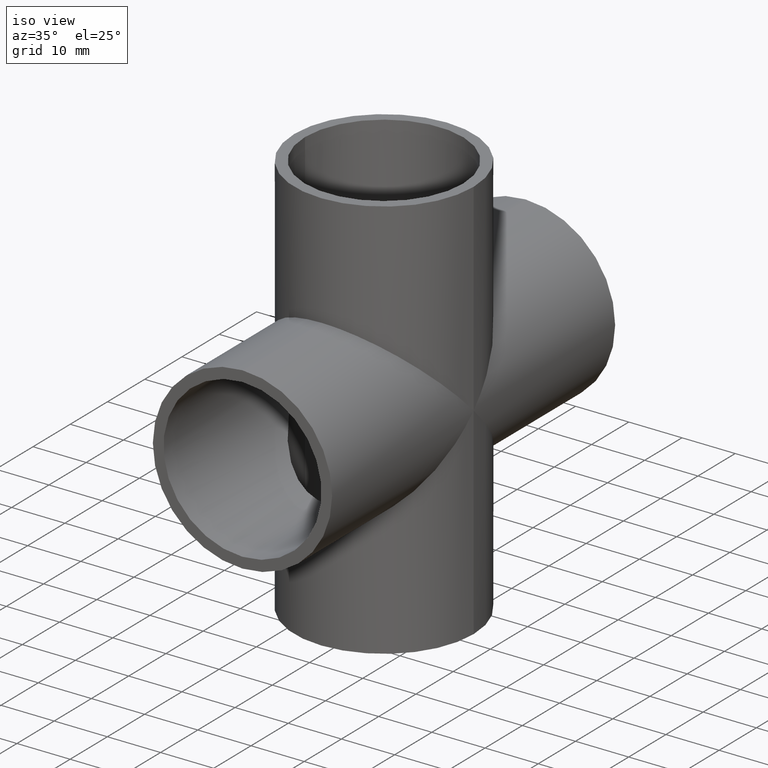
[diagram: clean part render]
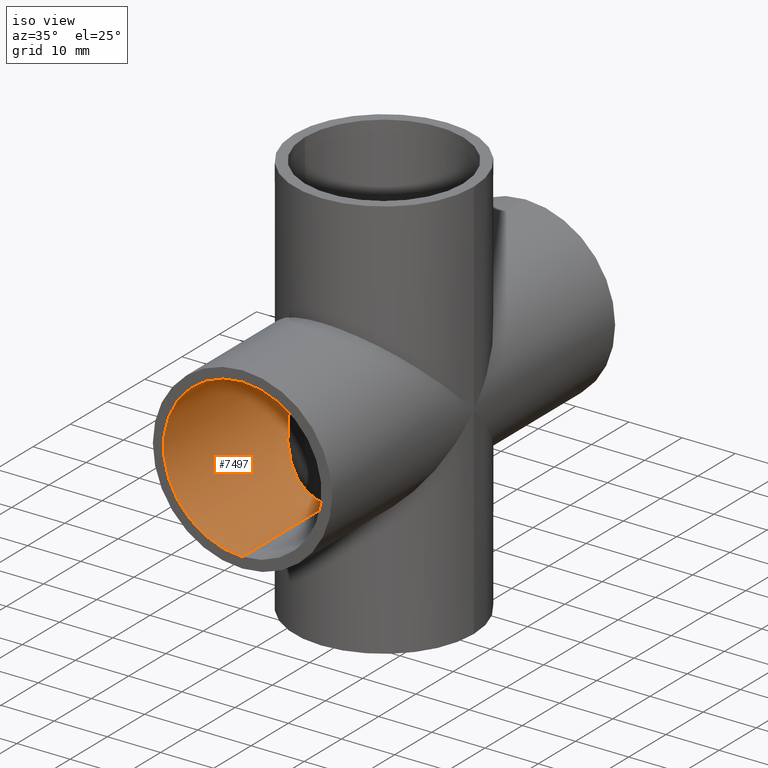
[diagram: same view with one face highlighted and labeled with its STEP entity id]
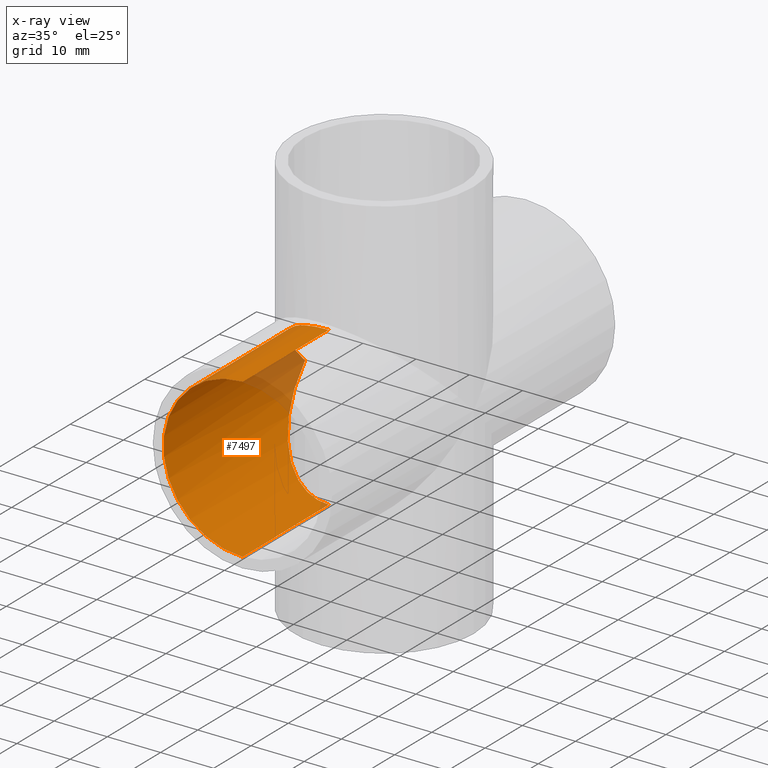
[diagram: x-ray of the same camera — body ghosted, the highlighted face saturated]
A machine part, iso view. The second image highlights one B-rep face of the part: STEP entity #7497.
The next image is the same camera in x-ray: the body ghosted, the highlighted face saturated — about 8% of this face is hidden behind the body in this view.
In plain terms, the highlighted cylindrical surface (partial cylindrical patch) has radius 14.85 mm, axis along (-0, -1, -0).
Its self-contained STEP definition (entity closure, byte-faithful):
#618 = CARTESIAN_POINT ( 'NONE',  ( -8.698928598759538400, -14.84999999999999600, -14.84999999999999600 ) ) ;
#926 = DIRECTION ( 'NONE',  ( 0.0000000000000000000, 0.0000000000000000000, -1.000000000000000000 ) ) ;
#977 = VECTOR ( 'NONE', #9880, 1000.000000000000000 ) ;
#1347 = ORIENTED_EDGE ( 'NONE', *, *, #1990, .F. ) ;
#1452 = CARTESIAN_POINT ( 'NONE',  ( -14.84999999999999600, -8.698928598759534800, -8.698928598759534800 ) ) ;
#1455 = AXIS2_PLACEMENT_3D ( 'NONE', #7004, #6162, #926 ) ;
#1637 = DIRECTION ( 'NONE',  ( 0.0000000000000000000, 1.000000000000000000, 0.0000000000000000000 ) ) ;
#1853 = DIRECTION ( 'NONE',  ( -0.0000000000000000000, -1.000000000000000000, -0.0000000000000000000 ) ) ;
#1866 = CIRCLE ( 'NONE', #10366, 14.85000000000000000 ) ;
#1990 = EDGE_CURVE ( 'NONE', #7989, #2492, #8190, .T. ) ;
#2120 = EDGE_CURVE ( 'NONE', #10794, #4716, #7644, .T. ) ;
#2492 = VERTEX_POINT ( 'NONE', #5876 ) ;
#2888 = EDGE_LOOP ( 'NONE', ( #8220, #10892, #9482, #1347, #9374 ) ) ;
#2975 = CYLINDRICAL_SURFACE ( 'NONE', #1455, 14.85000000000000000 ) ;
#3122 = VERTEX_POINT ( 'NONE', #9405 ) ;
#3305 = CARTESIAN_POINT ( 'NONE',  ( 1.818600496733819600E-015, -14.85000000000000100, 14.85000000000000000 ) ) ;
#4552 = CARTESIAN_POINT ( 'NONE',  ( 1.818600496733819600E-015, -14.85000000000000100, 14.85000000000000000 ) ) ;
#4716 = VERTEX_POINT ( 'NONE', #6907 ) ;
#5052 = CARTESIAN_POINT ( 'NONE',  ( -8.698928598759536600, -14.85000000000000100, 14.85000000000000100 ) ) ;
#5085 = CARTESIAN_POINT ( 'NONE',  ( -14.85000000000000300, 0.0000000000000000000, 0.0000000000000000000 ) ) ;
#5675 = EDGE_CURVE ( 'NONE', #10794, #3122, #9969, .T. ) ;
#5876 = CARTESIAN_POINT ( 'NONE',  ( 0.0000000000000000000, -38.00000000000000000, -14.85000000000000000 ) ) ;
#6162 = DIRECTION ( 'NONE',  ( -0.0000000000000000000, -1.000000000000000000, -0.0000000000000000000 ) ) ;
#6457 = EDGE_CURVE ( 'NONE', #3122, #7989, #8108, .T. ) ;
#6704 = CARTESIAN_POINT ( 'NONE',  ( 0.0000000000000000000, -14.85000000000000100, -14.85000000000000000 ) ) ;
#6834 = CARTESIAN_POINT ( 'NONE',  ( 0.0000000000000000000, -38.00000000000000000, 0.0000000000000000000 ) ) ;
#6907 = CARTESIAN_POINT ( 'NONE',  ( 1.818600496733819600E-015, -38.00000000000000000, 14.85000000000000000 ) ) ;
#7004 = CARTESIAN_POINT ( 'NONE',  ( 0.0000000000000000000, 38.00000000000000000, 0.0000000000000000000 ) ) ;
#7497 = ADVANCED_FACE ( 'NONE', ( #9917 ), #2975, .F. ) ;
#7527 = CARTESIAN_POINT ( 'NONE',  ( -14.85000000000000300, 0.0000000000000000000, 0.0000000000000000000 ) ) ;
#7644 = LINE ( 'NONE', #10520, #977 ) ;
#7694 = DIRECTION ( 'NONE',  ( 0.0000000000000000000, 0.0000000000000000000, 1.000000000000000000 ) ) ;
#7989 = VERTEX_POINT ( 'NONE', #10473 ) ;
#8108 =( BOUNDED_CURVE ( )  B_SPLINE_CURVE ( 3, ( #7527, #1452, #618, #6704 ),
 .UNSPECIFIED., .F., .T. ) 
 B_SPLINE_CURVE_WITH_KNOTS ( ( 4, 4 ),
 ( 4.712388980384689700, 6.283185307179586200 ),
 .UNSPECIFIED. ) 
 CURVE ( )  GEOMETRIC_REPRESENTATION_ITEM ( )  RATIONAL_B_SPLINE_CURVE ( ( 1.000000000000000000, 0.8047378541243649400, 0.8047378541243649400, 1.000000000000000000 ) ) 
 REPRESENTATION_ITEM ( '' )  );
#8190 = LINE ( 'NONE', #11117, #10522 ) ;
#8220 = ORIENTED_EDGE ( 'NONE', *, *, #5675, .F. ) ;
#8628 = EDGE_CURVE ( 'NONE', #2492, #4716, #1866, .T. ) ;
#9374 = ORIENTED_EDGE ( 'NONE', *, *, #6457, .F. ) ;
#9405 = CARTESIAN_POINT ( 'NONE',  ( -14.85000000000000300, 0.0000000000000000000, 0.0000000000000000000 ) ) ;
#9482 = ORIENTED_EDGE ( 'NONE', *, *, #8628, .F. ) ;
#9880 = DIRECTION ( 'NONE',  ( -0.0000000000000000000, -1.000000000000000000, -0.0000000000000000000 ) ) ;
#9917 = FACE_OUTER_BOUND ( 'NONE', #2888, .T. ) ;
#9969 =( BOUNDED_CURVE ( )  B_SPLINE_CURVE ( 3, ( #3305, #5052, #10306, #5085 ),
 .UNSPECIFIED., .F., .F. ) 
 B_SPLINE_CURVE_WITH_KNOTS ( ( 4, 4 ),
 ( 3.141592653589793100, 4.712388980384689700 ),
 .UNSPECIFIED. ) 
 CURVE ( )  GEOMETRIC_REPRESENTATION_ITEM ( )  RATIONAL_B_SPLINE_CURVE ( ( 1.000000000000000000, 0.8047378541243649400, 0.8047378541243649400, 1.000000000000000000 ) ) 
 REPRESENTATION_ITEM ( '' )  );
#10306 = CARTESIAN_POINT ( 'NONE',  ( -14.84999999999999600, -8.698928598759541900, 8.698928598759541900 ) ) ;
#10366 = AXIS2_PLACEMENT_3D ( 'NONE', #6834, #1637, #7694 ) ;
#10473 = CARTESIAN_POINT ( 'NONE',  ( 0.0000000000000000000, -14.85000000000000100, -14.85000000000000000 ) ) ;
#10520 = CARTESIAN_POINT ( 'NONE',  ( 1.818600496733819600E-015, 38.00000000000000000, 14.85000000000000000 ) ) ;
#10522 = VECTOR ( 'NONE', #1853, 1000.000000000000000 ) ;
#10794 = VERTEX_POINT ( 'NONE', #4552 ) ;
#10892 = ORIENTED_EDGE ( 'NONE', *, *, #2120, .T. ) ;
#11117 = CARTESIAN_POINT ( 'NONE',  ( 0.0000000000000000000, 38.00000000000000000, -14.85000000000000000 ) ) ;